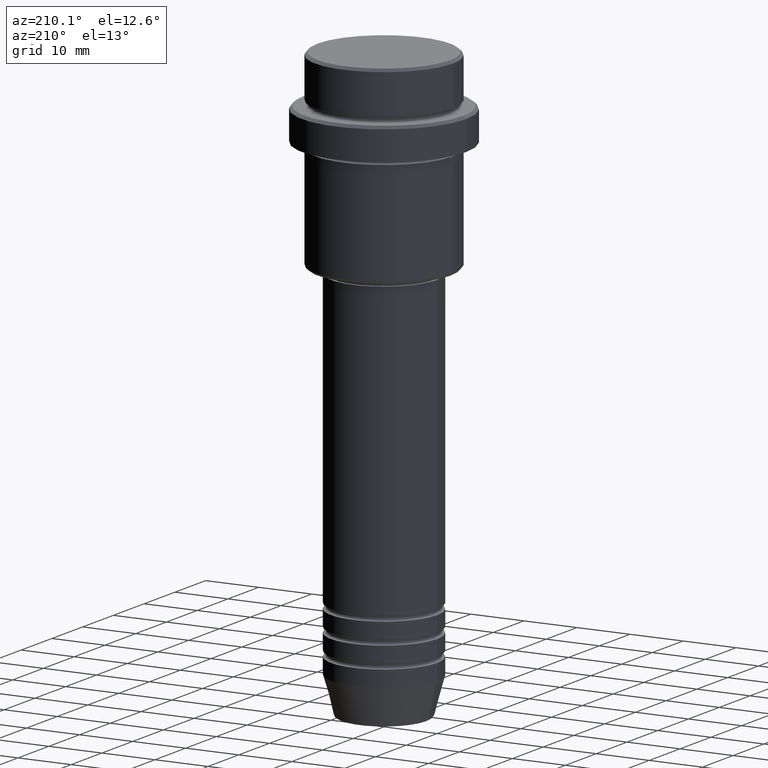
[diagram: clean part render]
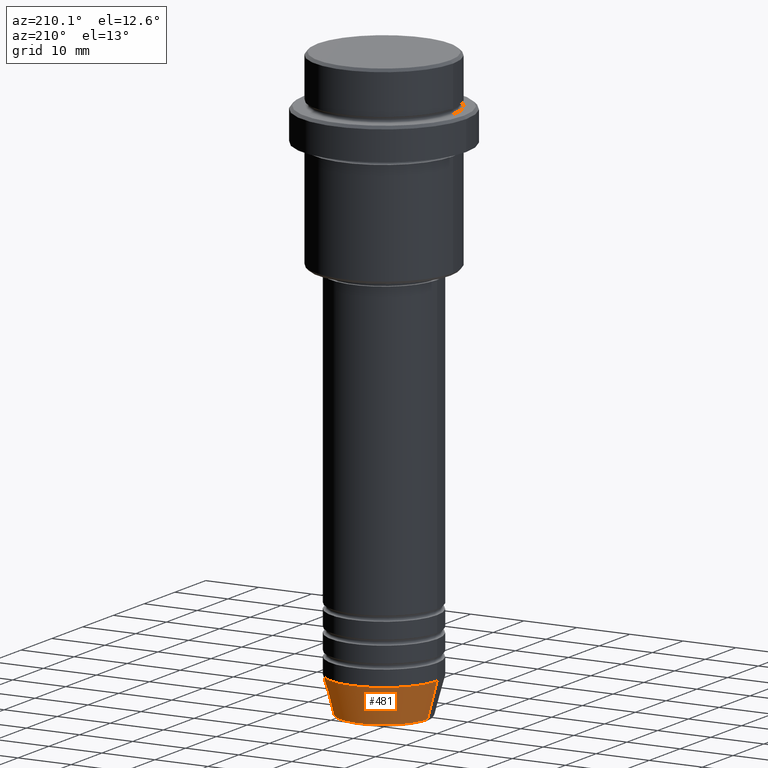
[diagram: same view with one face highlighted and labeled with its STEP entity id]
A machine part, auxiliary view. The second image highlights one B-rep face of the part: STEP entity #481.
In plain terms, the highlighted conical surface has half-angle 15 deg.
Its self-contained STEP definition (entity closure, byte-faithful):
#19 = CARTESIAN_POINT ( 'NONE',  ( 8.223655072137194821, 0.000000000000000000, -110.6294095225512564 ) ) ;
#44 = LINE ( 'NONE', #489, #437 ) ;
#50 = DIRECTION ( 'NONE',  ( -0.000000000000000000, -0.000000000000000000, 1.000000000000000000 ) ) ;
#88 = DIRECTION ( 'NONE',  ( -0.000000000000000000, -0.000000000000000000, 1.000000000000000000 ) ) ;
#106 = AXIS2_PLACEMENT_3D ( 'NONE', #1051, #88, #1403 ) ;
#158 = ORIENTED_EDGE ( 'NONE', *, *, #925, .F. ) ;
#193 = CONICAL_SURFACE ( 'NONE', #213, 10.00000000000000000, 0.2617993877991500740 ) ;
#213 = AXIS2_PLACEMENT_3D ( 'NONE', #1110, #976, #220 ) ;
#220 = DIRECTION ( 'NONE',  ( 1.000000000000000000, 0.000000000000000000, 0.000000000000000000 ) ) ;
#258 = CARTESIAN_POINT ( 'NONE',  ( 0.000000000000000000, 0.000000000000000000, -104.0000000000000000 ) ) ;
#290 = CARTESIAN_POINT ( 'NONE',  ( 10.00000000000000000, 0.000000000000000000, -104.0000000000000000 ) ) ;
#356 = CARTESIAN_POINT ( 'NONE',  ( -10.00000000000000000, 1.224646799147353256E-15, -104.0000000000000000 ) ) ;
#373 = DIRECTION ( 'NONE',  ( 1.000000000000000000, 0.000000000000000000, 0.000000000000000000 ) ) ;
#408 = CIRCLE ( 'NONE', #635, 10.00000000000000000 ) ;
#437 = VECTOR ( 'NONE', #818, 1000.000000000000000 ) ;
#481 = ADVANCED_FACE ( 'NONE', ( #1093 ), #193, .T. ) ;
#489 = CARTESIAN_POINT ( 'NONE',  ( -10.00000000000000000, 1.224646799147353256E-15, -104.0000000000000000 ) ) ;
#501 = VERTEX_POINT ( 'NONE', #356 ) ;
#549 = ORIENTED_EDGE ( 'NONE', *, *, #843, .T. ) ;
#575 = EDGE_CURVE ( 'NONE', #713, #501, #408, .T. ) ;
#635 = AXIS2_PLACEMENT_3D ( 'NONE', #258, #50, #373 ) ;
#642 = ORIENTED_EDGE ( 'NONE', *, *, #575, .F. ) ;
#670 = EDGE_CURVE ( 'NONE', #1376, #501, #44, .T. ) ;
#713 = VERTEX_POINT ( 'NONE', #290 ) ;
#818 = DIRECTION ( 'NONE',  ( -0.2588190451025213501, 3.169619151431772337E-17, 0.9659258262890680902 ) ) ;
#843 = EDGE_CURVE ( 'NONE', #1386, #1376, #1204, .T. ) ;
#881 = CARTESIAN_POINT ( 'NONE',  ( 10.00000000000000000, 0.000000000000000000, -104.0000000000000000 ) ) ;
#925 = EDGE_CURVE ( 'NONE', #1386, #713, #997, .T. ) ;
#976 = DIRECTION ( 'NONE',  ( -0.000000000000000000, -0.000000000000000000, 1.000000000000000000 ) ) ;
#980 = ORIENTED_EDGE ( 'NONE', *, *, #670, .T. ) ;
#983 = DIRECTION ( 'NONE',  ( 0.2588190451025213501, 0.000000000000000000, 0.9659258262890680902 ) ) ;
#997 = LINE ( 'NONE', #881, #1108 ) ;
#1051 = CARTESIAN_POINT ( 'NONE',  ( 0.000000000000000000, 0.000000000000000000, -110.6294095225512564 ) ) ;
#1093 = FACE_OUTER_BOUND ( 'NONE', #1293, .T. ) ;
#1108 = VECTOR ( 'NONE', #983, 1000.000000000000000 ) ;
#1110 = CARTESIAN_POINT ( 'NONE',  ( 0.000000000000000000, 0.000000000000000000, -104.0000000000000000 ) ) ;
#1204 = CIRCLE ( 'NONE', #106, 8.223655072137194821 ) ;
#1293 = EDGE_LOOP ( 'NONE', ( #549, #980, #642, #158 ) ) ;
#1350 = CARTESIAN_POINT ( 'NONE',  ( -8.223655072137194821, 1.115877042642912251E-15, -110.6294095225512564 ) ) ;
#1376 = VERTEX_POINT ( 'NONE', #1350 ) ;
#1386 = VERTEX_POINT ( 'NONE', #19 ) ;
#1403 = DIRECTION ( 'NONE',  ( 1.000000000000000000, 0.000000000000000000, 0.000000000000000000 ) ) ;